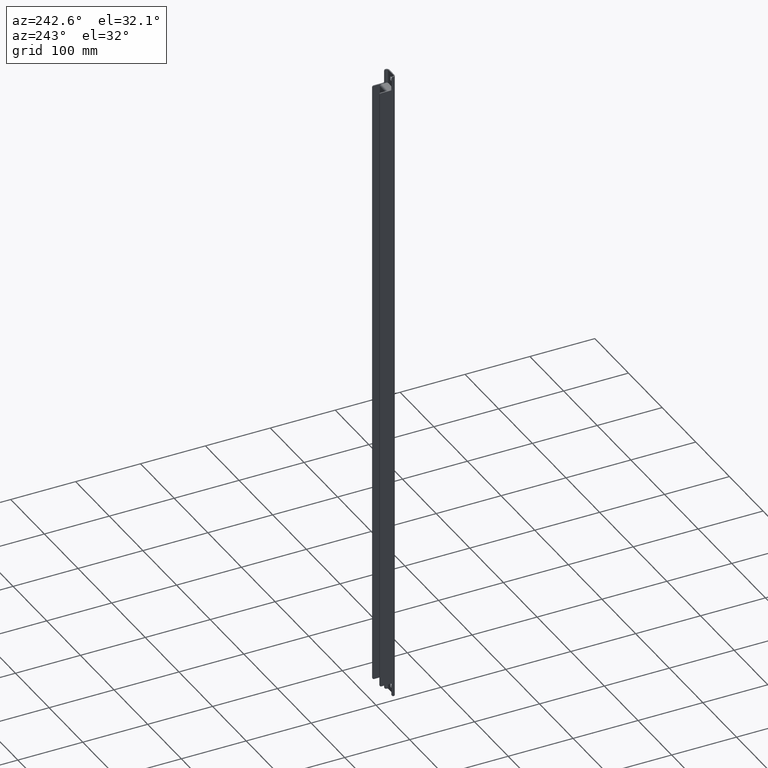
[diagram: clean part render]
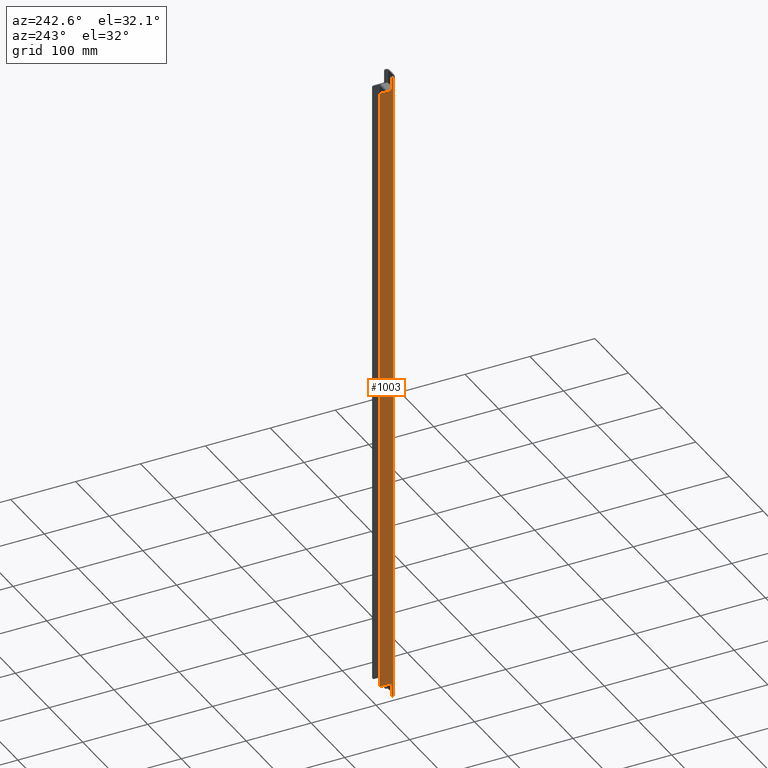
[diagram: same view with one face highlighted and labeled with its STEP entity id]
A machine part, auxiliary view. The second image highlights one B-rep face of the part: STEP entity #1003.
In plain terms, the highlighted planar face has unit normal (-1, -0, 0).
Its self-contained STEP definition (entity closure, byte-faithful):
#72=LINE('',#1669,#160);
#77=LINE('',#1681,#165);
#78=LINE('',#1683,#166);
#79=LINE('',#1687,#167);
#80=LINE('',#1691,#168);
#81=LINE('',#1695,#169);
#160=VECTOR('',#1350,1000.);
#165=VECTOR('',#1365,1000.);
#166=VECTOR('',#1366,1000.);
#167=VECTOR('',#1369,1000.);
#168=VECTOR('',#1372,1000.);
#169=VECTOR('',#1375,1000.);
#380=ORIENTED_EDGE('',*,*,#613,.F.);
#381=ORIENTED_EDGE('',*,*,#611,.T.);
#382=ORIENTED_EDGE('',*,*,#606,.T.);
#383=ORIENTED_EDGE('',*,*,#608,.T.);
#384=ORIENTED_EDGE('',*,*,#614,.F.);
#385=ORIENTED_EDGE('',*,*,#615,.T.);
#386=ORIENTED_EDGE('',*,*,#616,.F.);
#387=ORIENTED_EDGE('',*,*,#617,.T.);
#388=ORIENTED_EDGE('',*,*,#618,.F.);
#389=ORIENTED_EDGE('',*,*,#619,.T.);
#390=ORIENTED_EDGE('',*,*,#620,.F.);
#391=ORIENTED_EDGE('',*,*,#621,.T.);
#606=EDGE_CURVE('',#728,#729,#72,.T.);
#608=EDGE_CURVE('',#729,#730,#794,.T.);
#611=EDGE_CURVE('',#731,#728,#795,.T.);
#613=EDGE_CURVE('',#731,#732,#77,.T.);
#614=EDGE_CURVE('',#733,#730,#78,.T.);
#615=EDGE_CURVE('',#733,#734,#796,.T.);
#616=EDGE_CURVE('',#735,#734,#79,.T.);
#617=EDGE_CURVE('',#735,#736,#797,.T.);
#618=EDGE_CURVE('',#737,#736,#80,.T.);
#619=EDGE_CURVE('',#737,#738,#798,.T.);
#620=EDGE_CURVE('',#739,#738,#81,.T.);
#621=EDGE_CURVE('',#739,#732,#799,.T.);
#728=VERTEX_POINT('',#1666);
#729=VERTEX_POINT('',#1668);
#730=VERTEX_POINT('',#1672);
#731=VERTEX_POINT('',#1678);
#732=VERTEX_POINT('',#1682);
#733=VERTEX_POINT('',#1684);
#734=VERTEX_POINT('',#1686);
#735=VERTEX_POINT('',#1688);
#736=VERTEX_POINT('',#1690);
#737=VERTEX_POINT('',#1692);
#738=VERTEX_POINT('',#1694);
#739=VERTEX_POINT('',#1696);
#794=CIRCLE('',#1114,2.);
#795=CIRCLE('',#1116,2.);
#796=CIRCLE('',#1118,2.);
#797=CIRCLE('',#1119,2.);
#798=CIRCLE('',#1120,2.);
#799=CIRCLE('',#1121,2.);
#849=EDGE_LOOP('',(#380,#381,#382,#383,#384,#385,#386,#387,#388,#389,#390,
#391));
#917=FACE_BOUND('',#849,.T.);
#959=PLANE('',#1117);
#1003=ADVANCED_FACE('',(#917),#959,.T.);
#1114=AXIS2_PLACEMENT_3D('',#1673,#1354,#1355);
#1116=AXIS2_PLACEMENT_3D('',#1677,#1360,#1361);
#1117=AXIS2_PLACEMENT_3D('',#1680,#1363,#1364);
#1118=AXIS2_PLACEMENT_3D('',#1685,#1367,#1368);
#1119=AXIS2_PLACEMENT_3D('',#1689,#1370,#1371);
#1120=AXIS2_PLACEMENT_3D('',#1693,#1373,#1374);
#1121=AXIS2_PLACEMENT_3D('',#1697,#1376,#1377);
#1350=DIRECTION('',(3.32185076179638E-17,-1.43403807347416E-16,1.));
#1354=DIRECTION('',(-1.,-3.10099449920508E-15,3.32185076179632E-17));
#1355=DIRECTION('',(3.06328311929254E-15,-1.,-1.66533453693773E-16));
#1360=DIRECTION('',(-1.,-3.10099449920508E-15,3.32185076179632E-17));
#1361=DIRECTION('',(3.06328311929254E-15,-1.,-1.66533453693773E-16));
#1363=DIRECTION('',(-1.,-3.10099449920508E-15,3.32185076179632E-17));
#1364=DIRECTION('',(3.10099449920508E-15,-1.,-1.66533453693773E-16));
#1365=DIRECTION('',(-8.93686180177302E-17,-1.66533453693773E-16,1.));
#1366=DIRECTION('',(-8.93686180177302E-17,-4.2624633981144E-17,1.));
#1367=DIRECTION('',(1.,3.10099449920508E-15,-3.32185076179632E-17));
#1368=DIRECTION('',(3.06328311929254E-15,-1.,-1.66533453693773E-16));
#1369=DIRECTION('',(-4.06163832661068E-16,-1.,-1.66533453693773E-16));
#1370=DIRECTION('',(-1.,-3.10099449920508E-15,3.32185076179632E-17));
#1371=DIRECTION('',(3.06328311929254E-15,-1.,-1.66533453693773E-16));
#1372=DIRECTION('',(3.32185076179638E-17,-1.66533453693773E-16,1.));
#1373=DIRECTION('',(-1.,-3.10099449920508E-15,3.32185076179632E-17));
#1374=DIRECTION('',(3.06328311929254E-15,-1.,-1.66533453693773E-16));
#1375=DIRECTION('',(4.06163832661068E-16,1.,1.66533453693773E-16));
#1376=DIRECTION('',(1.,3.10099449920508E-15,-3.32185076179632E-17));
#1377=DIRECTION('',(3.06328311929254E-15,-1.,-1.66533453693773E-16));
#1666=CARTESIAN_POINT('',(-11.5,-20.4999999999999,-500.));
#1668=CARTESIAN_POINT('',(-11.4999999999999,-20.5000000000001,500.));
#1669=CARTESIAN_POINT('',(-11.5,-20.5,-2.72892459597848E-15));
#1672=CARTESIAN_POINT('',(-11.5,-18.5000000000001,498.));
#1673=CARTESIAN_POINT('',(-11.5,-20.5000000000001,498.));
#1677=CARTESIAN_POINT('',(-11.5,-20.4999999999999,-498.));
#1678=CARTESIAN_POINT('',(-11.4999999999999,-18.4999999999999,-498.));
#1680=CARTESIAN_POINT('',(-11.5,-23.,-3.08743411434703E-15));
#1681=CARTESIAN_POINT('',(-11.5,-18.4999999999999,-375.));
#1682=CARTESIAN_POINT('',(-11.5,-18.4999999999999,-481.));
#1683=CARTESIAN_POINT('',(-11.5000000000001,-18.5000000000001,500.));
#1684=CARTESIAN_POINT('',(-11.5,-18.5000000000001,481.));
#1685=CARTESIAN_POINT('',(-11.5,-16.5000000000001,481.));
#1686=CARTESIAN_POINT('',(-11.5,-16.5000000000001,479.));
#1687=CARTESIAN_POINT('',(-11.5,-7.63278329429795E-14,479.));
#1688=CARTESIAN_POINT('',(-11.5000000000002,-2.00000000000007,479.));
#1689=CARTESIAN_POINT('',(-11.5000000000002,-2.00000000000007,477.));
#1690=CARTESIAN_POINT('',(-11.5000000000002,-7.59670104599763E-14,477.));
#1691=CARTESIAN_POINT('',(-11.5000000000002,-5.89805981832114E-14,375.));
#1692=CARTESIAN_POINT('',(-11.5000000000002,8.32667268468867E-14,-477.));
#1693=CARTESIAN_POINT('',(-11.5000000000002,-1.99999999999992,-477.));
#1694=CARTESIAN_POINT('',(-11.5000000000001,-1.99999999999992,-479.));
#1695=CARTESIAN_POINT('',(-11.4999999999999,8.32667268468867E-14,-479.));
#1696=CARTESIAN_POINT('',(-11.4999999999999,-16.4999999999999,-479.));
#1697=CARTESIAN_POINT('',(-11.5,-16.4999999999999,-481.));